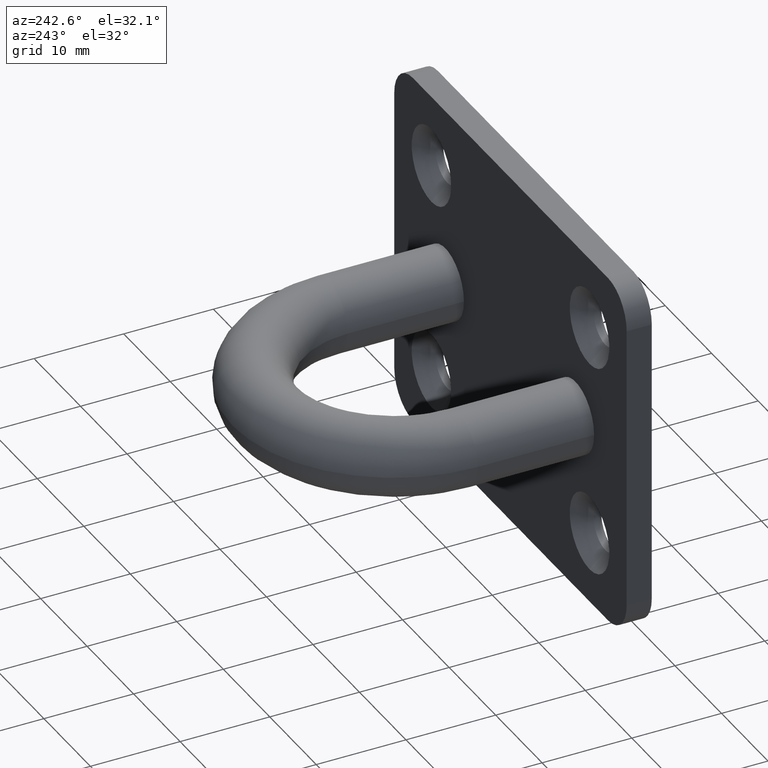
[diagram: clean part render]
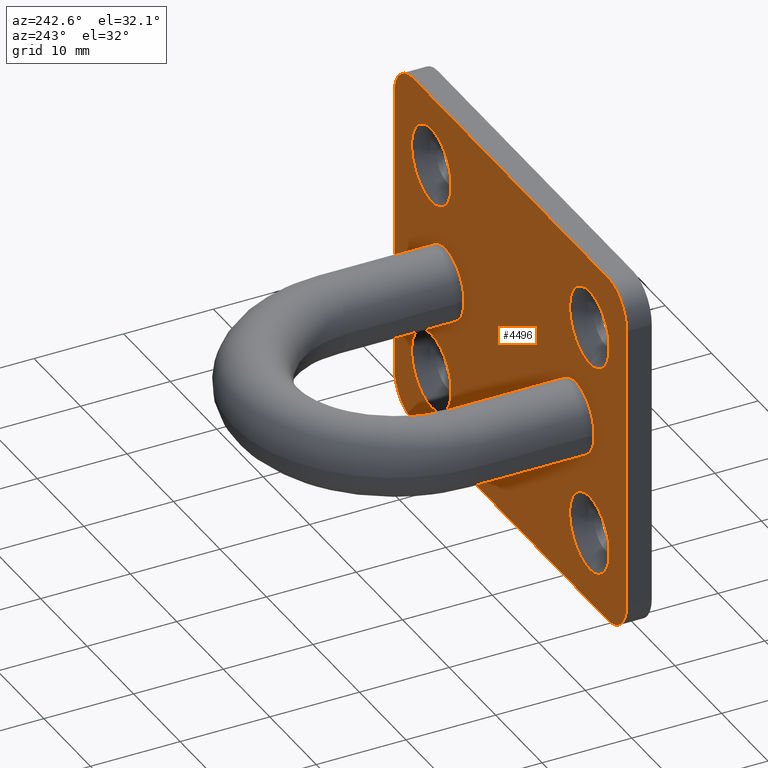
[diagram: same view with one face highlighted and labeled with its STEP entity id]
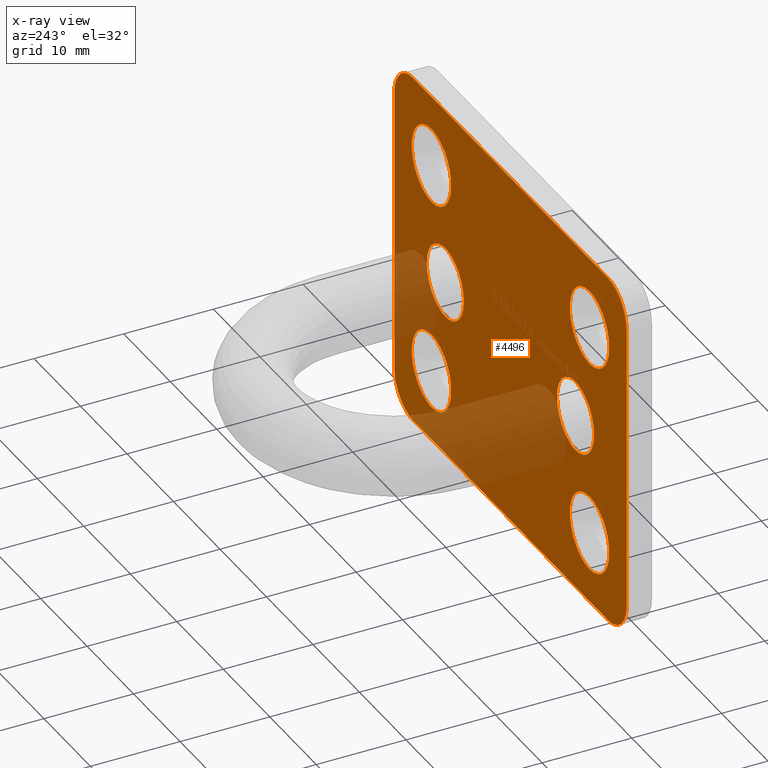
[diagram: x-ray of the same camera — body ghosted, the highlighted face saturated]
A machine part, auxiliary view. The second image highlights one B-rep face of the part: STEP entity #4496.
The next image is the same camera in x-ray: the body ghosted, the highlighted face saturated — about 19% of this face is hidden behind the body in this view.
In plain terms, the highlighted planar face has unit normal (0, -1, 0).
Its self-contained STEP definition (entity closure, byte-faithful):
#8 = EDGE_CURVE ( 'NONE', #2099, #7434, #9891, .T. ) ;
#83 = FACE_BOUND ( 'NONE', #3934, .T. ) ;
#148 = CARTESIAN_POINT ( 'NONE',  ( -17.00000000000000400, 2.799999999999999800, -12.00000000000000000 ) ) ;
#168 = CIRCLE ( 'NONE', #5017, 4.250000000000003600 ) ;
#304 = LINE ( 'NONE', #2798, #9343 ) ;
#397 = ORIENTED_EDGE ( 'NONE', *, *, #15049, .T. ) ;
#458 = CARTESIAN_POINT ( 'NONE',  ( -14.00000000000000000, 2.800000000000000300, 0.0000000000000000000 ) ) ;
#722 = ORIENTED_EDGE ( 'NONE', *, *, #12066, .T. ) ;
#770 = CARTESIAN_POINT ( 'NONE',  ( -17.00000000000000400, 2.800000000000000300, 7.749999999999996400 ) ) ;
#832 = FACE_BOUND ( 'NONE', #15120, .T. ) ;
#887 = ORIENTED_EDGE ( 'NONE', *, *, #10006, .T. ) ;
#1059 = DIRECTION ( 'NONE',  ( 0.0000000000000000000, 0.0000000000000000000, -1.000000000000000000 ) ) ;
#1156 = DIRECTION ( 'NONE',  ( 0.0000000000000000000, 0.0000000000000000000, -1.000000000000000000 ) ) ;
#1172 = DIRECTION ( 'NONE',  ( 0.0000000000000000000, 0.0000000000000000000, -1.000000000000000000 ) ) ;
#1224 = CARTESIAN_POINT ( 'NONE',  ( -17.00000000000000400, 2.800000000000000300, 16.25000000000000400 ) ) ;
#1240 = CARTESIAN_POINT ( 'NONE',  ( 17.00000000000001100, 2.799999999999999800, 11.99999999999999600 ) ) ;
#1498 = VECTOR ( 'NONE', #14079, 1000.000000000000000 ) ;
#1679 = CARTESIAN_POINT ( 'NONE',  ( -9.999999999999998200, 2.800000000000000300, 0.0000000000000000000 ) ) ;
#1732 = AXIS2_PLACEMENT_3D ( 'NONE', #6683, #9100, #6724 ) ;
#1885 = CARTESIAN_POINT ( 'NONE',  ( 16.99999999999999600, 2.799999999999999800, -16.25000000000001400 ) ) ;
#2099 = VERTEX_POINT ( 'NONE', #5248 ) ;
#2139 = VERTEX_POINT ( 'NONE', #10692 ) ;
#2243 = DIRECTION ( 'NONE',  ( 0.0000000000000000000, -1.000000000000000000, 0.0000000000000000000 ) ) ;
#2338 = CARTESIAN_POINT ( 'NONE',  ( -18.00000000000000400, 2.800000000000000300, 4.898587196589412800E-016 ) ) ;
#2361 = DIRECTION ( 'NONE',  ( 0.0000000000000000000, 0.0000000000000000000, -1.000000000000000000 ) ) ;
#2493 = FACE_BOUND ( 'NONE', #8461, .T. ) ;
#2598 = DIRECTION ( 'NONE',  ( 0.0000000000000000000, 0.0000000000000000000, -1.000000000000000000 ) ) ;
#2637 = EDGE_CURVE ( 'NONE', #14846, #5878, #168, .T. ) ;
#2798 = CARTESIAN_POINT ( 'NONE',  ( 24.99999999999999300, 2.799999999999999800, -20.00000000000000000 ) ) ;
#2848 = CARTESIAN_POINT ( 'NONE',  ( 17.00000000000001100, 2.799999999999999800, 7.749999999999992900 ) ) ;
#2984 = LINE ( 'NONE', #7911, #1498 ) ;
#3133 = ORIENTED_EDGE ( 'NONE', *, *, #2637, .T. ) ;
#3230 = AXIS2_PLACEMENT_3D ( 'NONE', #11289, #9301, #1172 ) ;
#3305 = CARTESIAN_POINT ( 'NONE',  ( 16.99999999999999600, 2.799999999999999800, -12.00000000000001100 ) ) ;
#3448 = LINE ( 'NONE', #5519, #6231 ) ;
#3497 = VERTEX_POINT ( 'NONE', #1885 ) ;
#3837 = CARTESIAN_POINT ( 'NONE',  ( -17.00000000000000400, 2.799999999999999800, 12.00000000000000000 ) ) ;
#3849 = CIRCLE ( 'NONE', #8254, 4.250000000000003600 ) ;
#3934 = EDGE_LOOP ( 'NONE', ( #13891, #12910 ) ) ;
#4028 = DIRECTION ( 'NONE',  ( 0.0000000000000000000, 0.0000000000000000000, -1.000000000000000000 ) ) ;
#4092 = AXIS2_PLACEMENT_3D ( 'NONE', #148, #8308, #8412 ) ;
#4157 = DIRECTION ( 'NONE',  ( 0.0000000000000000000, -1.000000000000000000, 0.0000000000000000000 ) ) ;
#4496 = ADVANCED_FACE ( 'NONE', ( #7110, #832, #2493, #12838, #83, #15039, #10612 ), #10711, .F. ) ;
#4506 = DIRECTION ( 'NONE',  ( -0.0000000000000000000, 1.000000000000000000, -0.0000000000000000000 ) ) ;
#4729 = CIRCLE ( 'NONE', #12215, 4.250000000000003600 ) ;
#4803 = AXIS2_PLACEMENT_3D ( 'NONE', #12773, #6931, #1059 ) ;
#5017 = AXIS2_PLACEMENT_3D ( 'NONE', #5269, #13553, #9804 ) ;
#5114 = DIRECTION ( 'NONE',  ( 0.0000000000000000000, -1.000000000000000000, 0.0000000000000000000 ) ) ;
#5248 = CARTESIAN_POINT ( 'NONE',  ( -21.00000000000000400, 2.799999999999999800, -19.99999999999999600 ) ) ;
#5269 = CARTESIAN_POINT ( 'NONE',  ( 17.00000000000001100, 2.799999999999999800, 11.99999999999999600 ) ) ;
#5320 = VERTEX_POINT ( 'NONE', #1224 ) ;
#5357 = CARTESIAN_POINT ( 'NONE',  ( 14.00000000000000000, 2.800000000000000300, 0.0000000000000000000 ) ) ;
#5414 = ORIENTED_EDGE ( 'NONE', *, *, #14542, .T. ) ;
#5505 = LINE ( 'NONE', #6954, #10660 ) ;
#5519 = CARTESIAN_POINT ( 'NONE',  ( 24.99999999999999300, 2.799999999999999800, -20.00000000000000000 ) ) ;
#5561 = CARTESIAN_POINT ( 'NONE',  ( -25.00000000000000000, 2.799999999999999800, 16.00000000000000000 ) ) ;
#5649 = CARTESIAN_POINT ( 'NONE',  ( 14.00000000000000000, 2.800000000000000300, 0.0000000000000000000 ) ) ;
#5700 = VERTEX_POINT ( 'NONE', #9282 ) ;
#5780 = DIRECTION ( 'NONE',  ( 0.0000000000000000000, 0.0000000000000000000, -1.000000000000000000 ) ) ;
#5878 = VERTEX_POINT ( 'NONE', #10625 ) ;
#5938 = ORIENTED_EDGE ( 'NONE', *, *, #14800, .T. ) ;
#6057 = EDGE_LOOP ( 'NONE', ( #6185, #13298 ) ) ;
#6185 = ORIENTED_EDGE ( 'NONE', *, *, #12592, .F. ) ;
#6191 = AXIS2_PLACEMENT_3D ( 'NONE', #6939, #10657, #15204 ) ;
#6204 = ORIENTED_EDGE ( 'NONE', *, *, #12383, .T. ) ;
#6231 = VECTOR ( 'NONE', #15000, 1000.000000000000000 ) ;
#6410 = DIRECTION ( 'NONE',  ( 0.0000000000000000000, 0.0000000000000000000, -1.000000000000000000 ) ) ;
#6456 = AXIS2_PLACEMENT_3D ( 'NONE', #5649, #4506, #9251 ) ;
#6511 = CIRCLE ( 'NONE', #11116, 4.250000000000003600 ) ;
#6557 = EDGE_CURVE ( 'NONE', #11618, #5700, #8055, .T. ) ;
#6567 = DIRECTION ( 'NONE',  ( 0.0000000000000000000, 0.0000000000000000000, -1.000000000000000000 ) ) ;
#6612 = EDGE_CURVE ( 'NONE', #2139, #6958, #9718, .T. ) ;
#6683 = CARTESIAN_POINT ( 'NONE',  ( -14.00000000000000000, 2.800000000000000300, 0.0000000000000000000 ) ) ;
#6694 = AXIS2_PLACEMENT_3D ( 'NONE', #8307, #9478, #10674 ) ;
#6724 = DIRECTION ( 'NONE',  ( 0.0000000000000000000, 0.0000000000000000000, -1.000000000000000000 ) ) ;
#6744 = DIRECTION ( 'NONE',  ( 0.0000000000000000000, 0.0000000000000000000, -1.000000000000000000 ) ) ;
#6931 = DIRECTION ( 'NONE',  ( -0.0000000000000000000, 1.000000000000000000, -0.0000000000000000000 ) ) ;
#6939 = CARTESIAN_POINT ( 'NONE',  ( 0.0000000000000000000, 2.799999999999999800, 0.0000000000000000000 ) ) ;
#6954 = CARTESIAN_POINT ( 'NONE',  ( -25.00000000000000700, 2.799999999999999800, -19.99999999999999600 ) ) ;
#6958 = VERTEX_POINT ( 'NONE', #11670 ) ;
#7027 = CIRCLE ( 'NONE', #10090, 4.000000000000000900 ) ;
#7045 = ORIENTED_EDGE ( 'NONE', *, *, #7446, .T. ) ;
#7071 = CARTESIAN_POINT ( 'NONE',  ( -25.00000000000000700, 2.799999999999999800, -15.99999999999999600 ) ) ;
#7073 = CARTESIAN_POINT ( 'NONE',  ( 21.00000000000000000, 2.799999999999999800, 19.99999999999999600 ) ) ;
#7110 = FACE_BOUND ( 'NONE', #14268, .T. ) ;
#7289 = EDGE_CURVE ( 'NONE', #3497, #9021, #3849, .T. ) ;
#7292 = DIRECTION ( 'NONE',  ( 0.0000000000000000000, -1.000000000000000000, 0.0000000000000000000 ) ) ;
#7385 = EDGE_CURVE ( 'NONE', #7434, #12696, #5505, .T. ) ;
#7434 = VERTEX_POINT ( 'NONE', #7071 ) ;
#7446 = EDGE_CURVE ( 'NONE', #12696, #14561, #12686, .T. ) ;
#7602 = ORIENTED_EDGE ( 'NONE', *, *, #7385, .T. ) ;
#7792 = CARTESIAN_POINT ( 'NONE',  ( 9.999999999999998200, 2.800000000000000300, 4.898587196589414800E-016 ) ) ;
#7846 = AXIS2_PLACEMENT_3D ( 'NONE', #1240, #10615, #2361 ) ;
#7911 = CARTESIAN_POINT ( 'NONE',  ( 25.00000000000000000, 2.799999999999999800, 19.99999999999999600 ) ) ;
#8055 = CIRCLE ( 'NONE', #3230, 4.000000000000000000 ) ;
#8246 = EDGE_CURVE ( 'NONE', #12487, #11451, #4729, .T. ) ;
#8254 = AXIS2_PLACEMENT_3D ( 'NONE', #3305, #12745, #5780 ) ;
#8307 = CARTESIAN_POINT ( 'NONE',  ( -21.00000000000000400, 2.799999999999999800, 16.00000000000000000 ) ) ;
#8308 = DIRECTION ( 'NONE',  ( 0.0000000000000000000, -1.000000000000000000, 0.0000000000000000000 ) ) ;
#8412 = DIRECTION ( 'NONE',  ( 0.0000000000000000000, 0.0000000000000000000, -1.000000000000000000 ) ) ;
#8461 = EDGE_LOOP ( 'NONE', ( #14534, #8702 ) ) ;
#8535 = AXIS2_PLACEMENT_3D ( 'NONE', #13885, #13839, #6744 ) ;
#8563 = EDGE_CURVE ( 'NONE', #12881, #9042, #9885, .T. ) ;
#8662 = CARTESIAN_POINT ( 'NONE',  ( 16.99999999999999600, 2.799999999999999800, -7.750000000000007100 ) ) ;
#8681 = EDGE_CURVE ( 'NONE', #9042, #12881, #14901, .T. ) ;
#8702 = ORIENTED_EDGE ( 'NONE', *, *, #8246, .T. ) ;
#8750 = ORIENTED_EDGE ( 'NONE', *, *, #6612, .T. ) ;
#8869 = AXIS2_PLACEMENT_3D ( 'NONE', #458, #5114, #6410 ) ;
#8870 = CIRCLE ( 'NONE', #7846, 4.250000000000003600 ) ;
#9021 = VERTEX_POINT ( 'NONE', #8662 ) ;
#9042 = VERTEX_POINT ( 'NONE', #1679 ) ;
#9100 = DIRECTION ( 'NONE',  ( 0.0000000000000000000, -1.000000000000000000, 0.0000000000000000000 ) ) ;
#9103 = EDGE_LOOP ( 'NONE', ( #6204, #13065 ) ) ;
#9139 = CARTESIAN_POINT ( 'NONE',  ( -17.00000000000000400, 2.800000000000000300, -16.25000000000000400 ) ) ;
#9251 = DIRECTION ( 'NONE',  ( 0.0000000000000000000, 0.0000000000000000000, -1.000000000000000000 ) ) ;
#9282 = CARTESIAN_POINT ( 'NONE',  ( 25.00000000000000000, 2.799999999999999800, 15.99999999999999600 ) ) ;
#9290 = EDGE_CURVE ( 'NONE', #13849, #5320, #12738, .T. ) ;
#9301 = DIRECTION ( 'NONE',  ( -0.0000000000000000000, 1.000000000000000000, -0.0000000000000000000 ) ) ;
#9336 = CARTESIAN_POINT ( 'NONE',  ( -21.00000000000000400, 2.799999999999999800, 20.00000000000000000 ) ) ;
#9343 = VECTOR ( 'NONE', #10008, 1000.000000000000000 ) ;
#9463 = CIRCLE ( 'NONE', #4092, 4.250000000000003600 ) ;
#9478 = DIRECTION ( 'NONE',  ( -0.0000000000000000000, 1.000000000000000000, -0.0000000000000000000 ) ) ;
#9494 = CARTESIAN_POINT ( 'NONE',  ( 18.00000000000000400, 2.800000000000000300, 0.0000000000000000000 ) ) ;
#9718 = CIRCLE ( 'NONE', #4803, 4.000000000000000000 ) ;
#9732 = VERTEX_POINT ( 'NONE', #7792 ) ;
#9804 = DIRECTION ( 'NONE',  ( 0.0000000000000000000, 0.0000000000000000000, -1.000000000000000000 ) ) ;
#9885 = CIRCLE ( 'NONE', #1732, 4.000000000000000900 ) ;
#9891 = CIRCLE ( 'NONE', #8535, 4.000000000000000000 ) ;
#10006 = EDGE_CURVE ( 'NONE', #5878, #14846, #8870, .T. ) ;
#10008 = DIRECTION ( 'NONE',  ( -1.734723475976807300E-016, -0.0000000000000000000, -1.000000000000000000 ) ) ;
#10090 = AXIS2_PLACEMENT_3D ( 'NONE', #5357, #13476, #4028 ) ;
#10095 = ORIENTED_EDGE ( 'NONE', *, *, #7289, .T. ) ;
#10486 = DIRECTION ( 'NONE',  ( 0.0000000000000000000, 0.0000000000000000000, -1.000000000000000000 ) ) ;
#10612 = FACE_BOUND ( 'NONE', #6057, .T. ) ;
#10615 = DIRECTION ( 'NONE',  ( 0.0000000000000000000, -1.000000000000000000, 0.0000000000000000000 ) ) ;
#10625 = CARTESIAN_POINT ( 'NONE',  ( 17.00000000000001100, 2.799999999999999800, 16.25000000000000000 ) ) ;
#10657 = DIRECTION ( 'NONE',  ( 0.0000000000000000000, -1.000000000000000000, 0.0000000000000000000 ) ) ;
#10660 = VECTOR ( 'NONE', #11696, 1000.000000000000000 ) ;
#10674 = DIRECTION ( 'NONE',  ( 0.0000000000000000000, 0.0000000000000000000, -1.000000000000000000 ) ) ;
#10692 = CARTESIAN_POINT ( 'NONE',  ( 24.99999999999999300, 2.799999999999999800, -16.00000000000000000 ) ) ;
#10706 = VERTEX_POINT ( 'NONE', #9494 ) ;
#10711 = PLANE ( 'NONE',  #6191 ) ;
#10905 = ORIENTED_EDGE ( 'NONE', *, *, #6557, .T. ) ;
#11116 = AXIS2_PLACEMENT_3D ( 'NONE', #14069, #12915, #1156 ) ;
#11289 = CARTESIAN_POINT ( 'NONE',  ( 21.00000000000000000, 2.799999999999999800, 15.99999999999999600 ) ) ;
#11451 = VERTEX_POINT ( 'NONE', #14889 ) ;
#11618 = VERTEX_POINT ( 'NONE', #7073 ) ;
#11667 = EDGE_CURVE ( 'NONE', #11451, #12487, #9463, .T. ) ;
#11670 = CARTESIAN_POINT ( 'NONE',  ( 20.99999999999999300, 2.799999999999999800, -20.00000000000000000 ) ) ;
#11696 = DIRECTION ( 'NONE',  ( 1.734723475976807300E-016, 0.0000000000000000000, 1.000000000000000000 ) ) ;
#12013 = ORIENTED_EDGE ( 'NONE', *, *, #8, .T. ) ;
#12066 = EDGE_CURVE ( 'NONE', #14561, #11618, #2984, .T. ) ;
#12119 = EDGE_CURVE ( 'NONE', #9732, #10706, #13326, .T. ) ;
#12215 = AXIS2_PLACEMENT_3D ( 'NONE', #12666, #2243, #10486 ) ;
#12383 = EDGE_CURVE ( 'NONE', #5320, #13849, #14066, .T. ) ;
#12407 = EDGE_LOOP ( 'NONE', ( #397, #12013, #7602, #7045, #722, #10905, #5938, #8750 ) ) ;
#12487 = VERTEX_POINT ( 'NONE', #9139 ) ;
#12592 = EDGE_CURVE ( 'NONE', #10706, #9732, #7027, .T. ) ;
#12666 = CARTESIAN_POINT ( 'NONE',  ( -17.00000000000000400, 2.799999999999999800, -12.00000000000000000 ) ) ;
#12686 = CIRCLE ( 'NONE', #6694, 4.000000000000000000 ) ;
#12696 = VERTEX_POINT ( 'NONE', #5561 ) ;
#12738 = CIRCLE ( 'NONE', #14779, 4.250000000000003600 ) ;
#12745 = DIRECTION ( 'NONE',  ( 0.0000000000000000000, -1.000000000000000000, 0.0000000000000000000 ) ) ;
#12772 = AXIS2_PLACEMENT_3D ( 'NONE', #14830, #4157, #6567 ) ;
#12773 = CARTESIAN_POINT ( 'NONE',  ( 20.99999999999999300, 2.799999999999999800, -16.00000000000000000 ) ) ;
#12838 = FACE_BOUND ( 'NONE', #9103, .T. ) ;
#12881 = VERTEX_POINT ( 'NONE', #2338 ) ;
#12910 = ORIENTED_EDGE ( 'NONE', *, *, #8563, .T. ) ;
#12915 = DIRECTION ( 'NONE',  ( 0.0000000000000000000, -1.000000000000000000, 0.0000000000000000000 ) ) ;
#13065 = ORIENTED_EDGE ( 'NONE', *, *, #9290, .T. ) ;
#13298 = ORIENTED_EDGE ( 'NONE', *, *, #12119, .F. ) ;
#13326 = CIRCLE ( 'NONE', #6456, 4.000000000000000900 ) ;
#13476 = DIRECTION ( 'NONE',  ( -0.0000000000000000000, 1.000000000000000000, -0.0000000000000000000 ) ) ;
#13553 = DIRECTION ( 'NONE',  ( 0.0000000000000000000, -1.000000000000000000, 0.0000000000000000000 ) ) ;
#13839 = DIRECTION ( 'NONE',  ( -0.0000000000000000000, 1.000000000000000000, -0.0000000000000000000 ) ) ;
#13849 = VERTEX_POINT ( 'NONE', #770 ) ;
#13885 = CARTESIAN_POINT ( 'NONE',  ( -21.00000000000000700, 2.799999999999999800, -15.99999999999999600 ) ) ;
#13891 = ORIENTED_EDGE ( 'NONE', *, *, #8681, .T. ) ;
#14066 = CIRCLE ( 'NONE', #12772, 4.250000000000003600 ) ;
#14069 = CARTESIAN_POINT ( 'NONE',  ( 16.99999999999999600, 2.799999999999999800, -12.00000000000001100 ) ) ;
#14079 = DIRECTION ( 'NONE',  ( 1.000000000000000000, -0.0000000000000000000, -6.938893903907228400E-017 ) ) ;
#14268 = EDGE_LOOP ( 'NONE', ( #887, #3133 ) ) ;
#14534 = ORIENTED_EDGE ( 'NONE', *, *, #11667, .T. ) ;
#14542 = EDGE_CURVE ( 'NONE', #9021, #3497, #6511, .T. ) ;
#14561 = VERTEX_POINT ( 'NONE', #9336 ) ;
#14779 = AXIS2_PLACEMENT_3D ( 'NONE', #3837, #7292, #2598 ) ;
#14800 = EDGE_CURVE ( 'NONE', #5700, #2139, #304, .T. ) ;
#14830 = CARTESIAN_POINT ( 'NONE',  ( -17.00000000000000400, 2.799999999999999800, 12.00000000000000000 ) ) ;
#14846 = VERTEX_POINT ( 'NONE', #2848 ) ;
#14889 = CARTESIAN_POINT ( 'NONE',  ( -17.00000000000000400, 2.800000000000000300, -7.749999999999996400 ) ) ;
#14901 = CIRCLE ( 'NONE', #8869, 4.000000000000000900 ) ;
#15000 = DIRECTION ( 'NONE',  ( -1.000000000000000000, 0.0000000000000000000, 6.938893903907228400E-017 ) ) ;
#15039 = FACE_OUTER_BOUND ( 'NONE', #12407, .T. ) ;
#15049 = EDGE_CURVE ( 'NONE', #6958, #2099, #3448, .T. ) ;
#15120 = EDGE_LOOP ( 'NONE', ( #5414, #10095 ) ) ;
#15204 = DIRECTION ( 'NONE',  ( 0.0000000000000000000, -0.0000000000000000000, -1.000000000000000000 ) ) ;